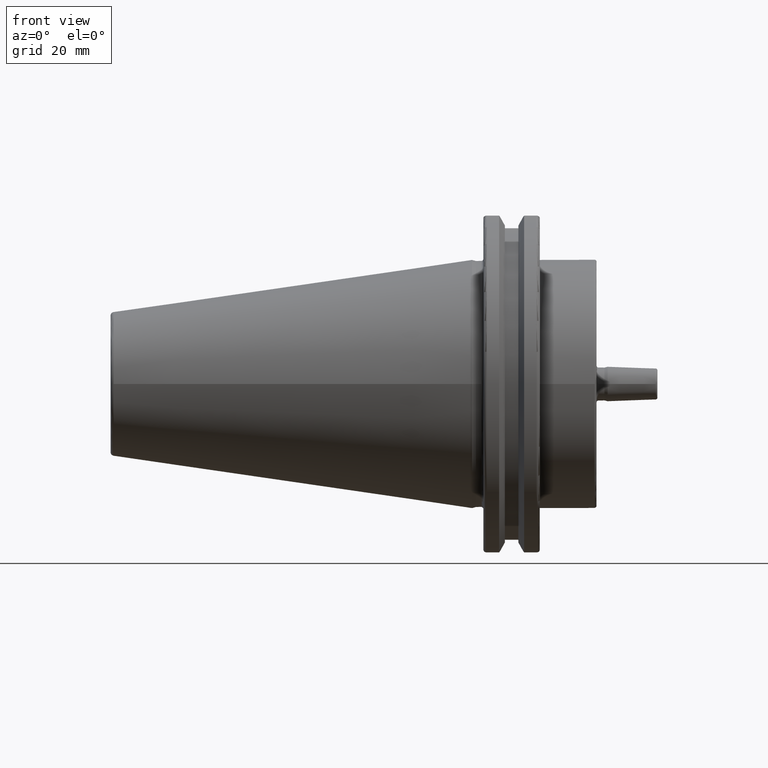
[diagram: clean part render]
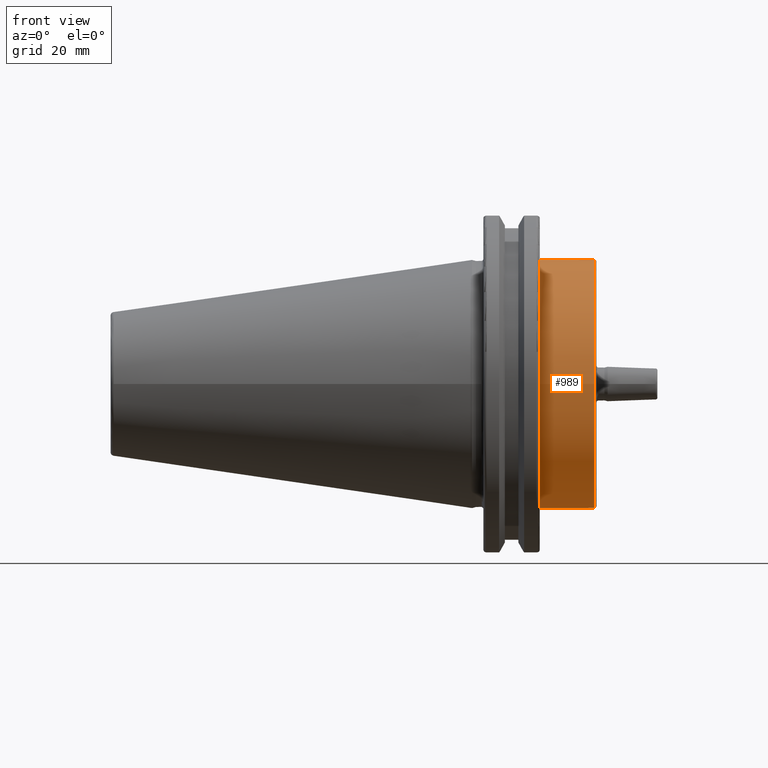
[diagram: same view with one face highlighted and labeled with its STEP entity id]
A machine part, front view. The second image highlights one B-rep face of the part: STEP entity #989.
In plain terms, the highlighted cylindrical surface (bore or boss wall) has radius 34.925 mm, axis along (1, 0, 0).
Its self-contained STEP definition (entity closure, byte-faithful):
#101=FACE_OUTER_BOUND('',#161,.T.);
#161=EDGE_LOOP('',(#671,#672,#673,#674,#675));
#227=LINE('',#1485,#296);
#296=VECTOR('',#1190,34.925);
#365=CIRCLE('',#1073,34.925);
#366=CIRCLE('',#1074,34.925);
#367=CIRCLE('',#1075,34.925);
#417=VERTEX_POINT('',#1481);
#418=VERTEX_POINT('',#1482);
#419=VERTEX_POINT('',#1484);
#518=EDGE_CURVE('',#417,#418,#365,.T.);
#519=EDGE_CURVE('',#417,#419,#227,.T.);
#520=EDGE_CURVE('',#419,#419,#366,.T.);
#521=EDGE_CURVE('',#418,#417,#367,.T.);
#671=ORIENTED_EDGE('',*,*,#518,.F.);
#672=ORIENTED_EDGE('',*,*,#519,.T.);
#673=ORIENTED_EDGE('',*,*,#520,.F.);
#674=ORIENTED_EDGE('',*,*,#519,.F.);
#675=ORIENTED_EDGE('',*,*,#521,.F.);
#977=CYLINDRICAL_SURFACE('',#1072,34.925);
#989=ADVANCED_FACE('',(#101),#977,.T.);
#1072=AXIS2_PLACEMENT_3D('',#1480,#1186,#1187);
#1073=AXIS2_PLACEMENT_3D('',#1483,#1188,#1189);
#1074=AXIS2_PLACEMENT_3D('',#1486,#1191,#1192);
#1075=AXIS2_PLACEMENT_3D('',#1487,#1193,#1194);
#1186=DIRECTION('center_axis',(1.,0.,0.));
#1187=DIRECTION('ref_axis',(0.,1.,0.));
#1188=DIRECTION('center_axis',(1.,0.,0.));
#1189=DIRECTION('ref_axis',(0.,0.,-1.));
#1190=DIRECTION('',(-1.,0.,0.));
#1191=DIRECTION('center_axis',(-1.,0.,0.));
#1192=DIRECTION('ref_axis',(0.,1.,0.));
#1193=DIRECTION('center_axis',(1.,0.,0.));
#1194=DIRECTION('ref_axis',(0.,0.,-1.));
#1480=CARTESIAN_POINT('Origin',(26.775,0.,0.));
#1481=CARTESIAN_POINT('',(34.5,-34.925,-4.27707894602213E-15));
#1482=CARTESIAN_POINT('',(34.5,-4.27707894602213E-15,34.925));
#1483=CARTESIAN_POINT('Origin',(34.5,0.,0.));
#1484=CARTESIAN_POINT('',(19.05,-34.925,-4.27707894602213E-15));
#1485=CARTESIAN_POINT('',(26.775,-34.925,-4.27707894602213E-15));
#1486=CARTESIAN_POINT('Origin',(19.05,0.,0.));
#1487=CARTESIAN_POINT('Origin',(34.5,0.,0.));